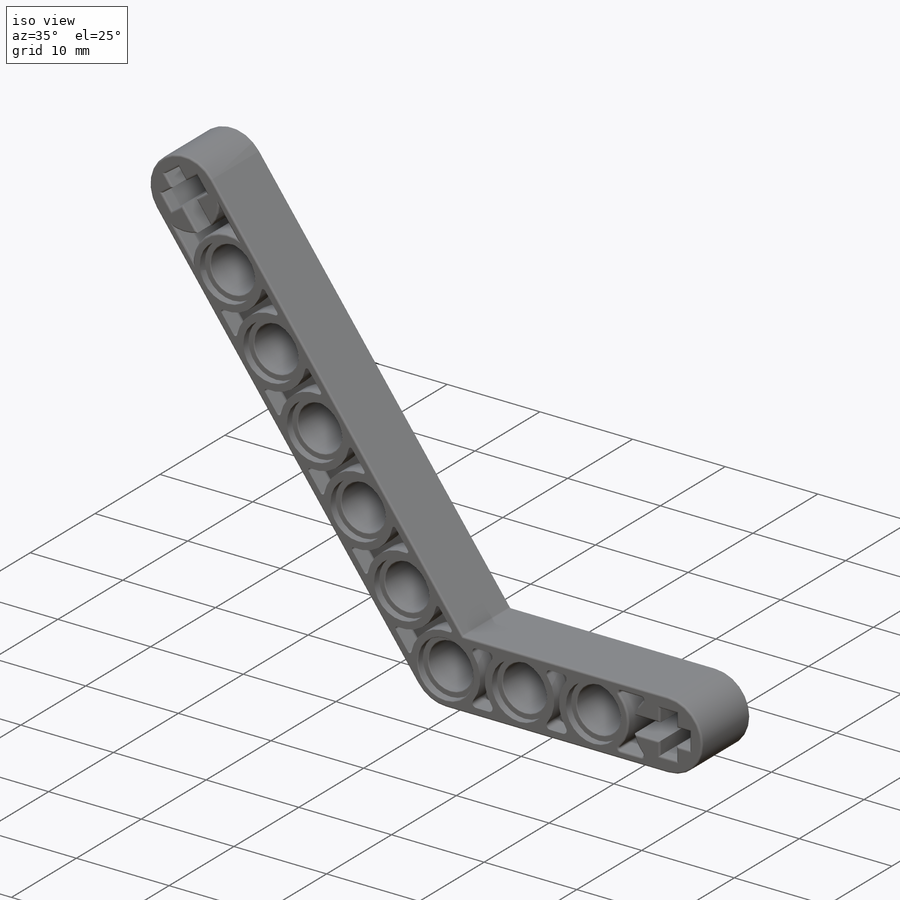
[diagram: iso view]
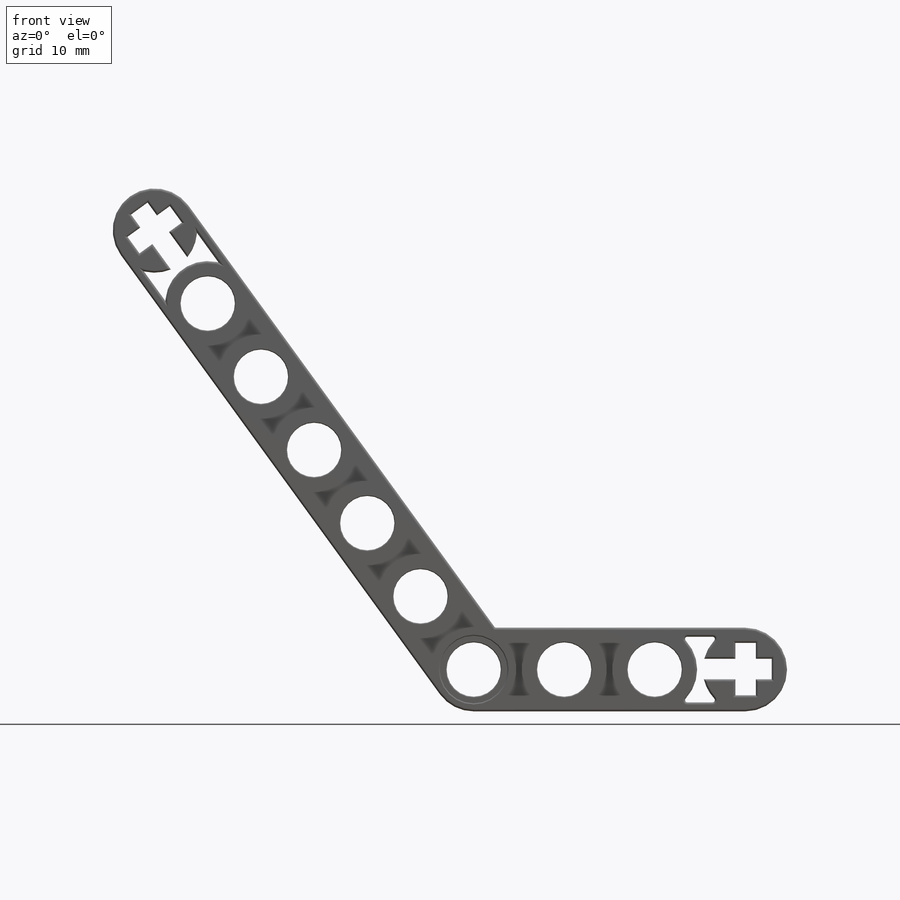
[diagram: front view]
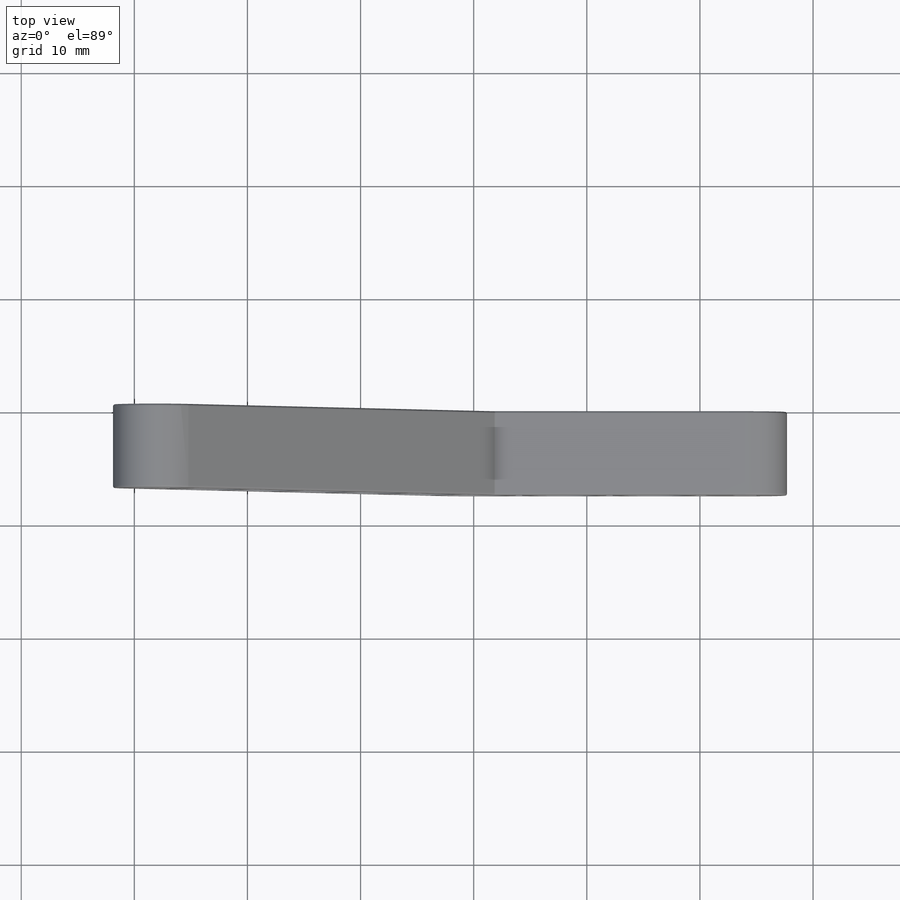
[diagram: top view]
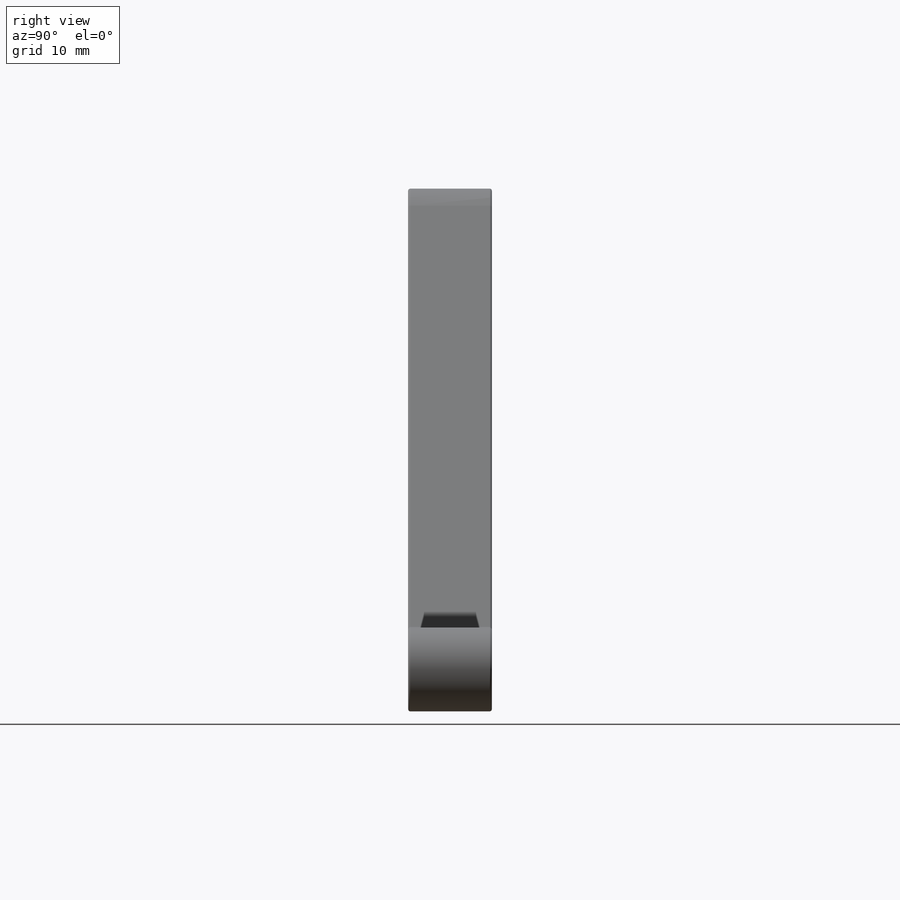
[diagram: right view]
SOLIDWORKS PART (.sldprt)
format: sldprt  version: not decoded by parser v0  size: 957,952 bytes
history: native  units: mm
features: sketch x9, cut_extrude x8, fillet x8, pattern_linear x4, plane x2, material x1, extrude x1, mirror x1 + 1 further entry (+12 scaffold rows collapsed)
feature tree (47):
  scaffold x12  (default folders/planes/origin — collapsed)
  material  "PVC Rigid"
  "Design Table"
  sketch  "Sketch1"  dims[c1.D1=~49.244346mm c1.D4=~11.00421mm c2.D1=16.0mm c2.D5=48.0mm c3.D5=90.0deg c3.D1=48.0mm c4.D1=126.0deg c4.D5=16.0mm c4.D2=3.7mm c4.D3=3.7mm c5.D2=3.7mm c5.D3=3.7mm c5.D5=3.7mm c5.D6=3.7mm c6.D2=3.7mm c6.D3=3.7mm]
  extrude  "Body"  Depth=3.9mm
  sketch  "Sketch2"  dims[D1=4.8mm]
  cut_extrude  "Hole"  [1 undecoded]
  sketch  "Sketch4"  dims[D1=6.0mm]
  cut_extrude  "counter bore"  Depth=0.8mm
  fillet  "Fillet5"  Radius=0.1mm
  pattern_linear  "no of X holes"  Count1=3 Count2=1 Spacing1=8mm Spacing2=8mm
  sketch  "Sketch7"  dims[c1.D1=1.81mm c1.D2=1.8mm c1.D3=1.8mm c1.D4=1.8mm c2.D2=1.4mm c2.D3=1.35mm c2.D4=1.35mm c2.D5=2.9mm c3.D3=1.41mm c3.D2=2.9mm]
  sketch  "Sketch6"  dims[D1=0.0mm]
  pattern_linear  "no of Y holes"  Count1=6 Count2=1 Spacing1=8mm Spacing2=10mm
  cut_extrude  "Extrude6"  [1 undecoded]
  cut_extrude  "Extrude5"  Depth=2mm
  sketch  "Sketch9"  dims[D1=7.5mm D2=7.5mm D3=0.8mm D4=0.8mm]
  cut_extrude  "Extrude7"  [1 undecoded]
  fillet  "Fillet11"  Radius=0.2mm
  fillet  "Fillet12"  Radius=0.2mm
  fillet  "Fillet1"  Radius=0.4mm
  pattern_linear  "no of x ribs"  Count1=2 Count2=1 Spacing1=8mm Spacing2=10mm
  plane  "Plane1"  Offset=3.9mm
  fillet  "Fillet8"  Radius=0.2mm
  sketch  "Sketch10"  dims[D1=7.5mm D2=7.5mm D3=~7.442075mm D4=0.8mm D5=0.8mm]
  cut_extrude  "Extrude8"  Depth=2mm
  fillet  "Fillet16"  Radius=0.2mm
  pattern_linear  "no of y ribs"  Count1=5 Count2=1 Spacing1=8mm Spacing2=10mm
  sketch  "Sketch11"  dims[D1=1.81mm D2=1.41mm D3=1.35mm D4=2.9mm D5=1.35mm]
  cut_extrude  "Extrude9"  [1 undecoded]
  sketch  "Sketch12"  dims[c1.D1=7.5mm c1.D2=7.5mm c2.D1=7.5mm c2.D2=7.5mm c2.D3=0.8mm c2.D4=0.8mm c3.D2=~3.245003mm]
  cut_extrude  "Extrude10"  [1 undecoded]
  fillet  "Fillet17"  Radius=0.2mm
  plane  "Plane2"  Offset=3.7mm
  mirror  "Mirror9"
  fillet  "Fillet7"  Radius=0.2mm
decode coverage: 25 of 31 modeling features carry decoded parameters; 1 rows unclassified (native names shown)
note: ~ marks probable driven/reference dimensions
note: 5 parameter values undecoded
summary: no parameter record found for 5 features
note: suppression state not decoded; provenance and decode notes live in map.json
